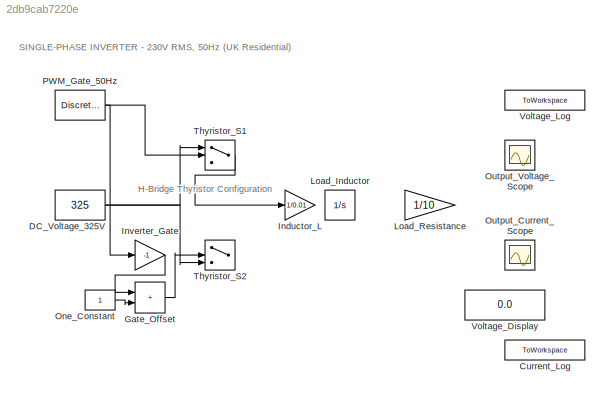
MODEL slx_2db9cab7220e
KIND model
CONFIG AbsTol = auto
CONFIG EnableMultiTasking = off
CONFIG FixedStep = auto
CONFIG MaxStep = 1e-5
CONFIG MinStep = auto
CONFIG RelTol = 1e-3
CONFIG SampleTimeConstraint = Unconstrained
CONFIG SolverName = ode23t
CONFIG StartTime = 0.0
CONFIG StopTime = 0.1
BLOCK [ToWorkspace] Current_Log
  FixptAsFi = on
  MaxDataPoints = inf
  SampleTime = -1
  SaveFormat = Timeseries
  VariableName = single_phase_current
BLOCK [Constant] DC_Voltage_325V
  Value = 325
BLOCK [Sum] Gate_Offset
  IconShape = rectangular
BLOCK [Gain] Inductor_L
  Gain = 1/0.01
BLOCK [Gain] Inverter_Gate
  Gain = -1
BLOCK [Integrator] Load_Inductor
BLOCK [Gain] Load_Resistance
  Gain = 1/10
BLOCK [Constant] One_Constant
BLOCK [Scope] Output_Current_Scope
  Floating = off
  GraphicalSettings = {"GraphicalSettings":{"LegacySettings":true,"Style":{"Style":{"PlotType":"Auto"}}}}
  NumInputPorts = 1
  WasSavedAsWebScope = on
BLOCK [Scope] Output_Voltage_Scope
  Floating = off
  GraphicalSettings = {"GraphicalSettings":{"LegacySettings":true,"Style":{"Style":{"PlotType":"Auto"}}}}
  NumInputPorts = 1
  WasSavedAsWebScope = on
BLOCK [DiscretePulseGenerator] PWM_Gate_50Hz
  Period = 0.02
  PulseType = Time based
  PulseWidth = 50
BLOCK [Switch] Thyristor_S1
  Criteria = u2 > Threshold
  InputSameDT = off
  SaturateOnIntegerOverflow = off
  Threshold = 0.5
BLOCK [Switch] Thyristor_S2
  Criteria = u2 > Threshold
  InputSameDT = off
  SaturateOnIntegerOverflow = off
  Threshold = 0.5
BLOCK [Display] Voltage_Display
  Decimation = 1
BLOCK [ToWorkspace] Voltage_Log
  FixptAsFi = on
  MaxDataPoints = inf
  SampleTime = -1
  SaveFormat = Timeseries
  VariableName = single_phase_voltage
ANNOTATION (root): H-Bridge Thyristor Configuration
ANNOTATION (root): SINGLE-PHASE INVERTER - 230V RMS, 50Hz (UK Residential)
NET DC_Voltage_325V:1 -> Thyristor_S1:1, Thyristor_S2:3
LINE Gate_Offset:1 -> Thyristor_S2:2
LINE Inverter_Gate:1 -> Gate_Offset:1
LINE One_Constant:1 -> Gate_Offset:2
NET PWM_Gate_50Hz:1 -> Inverter_Gate:1, Thyristor_S1:2
LINE Thyristor_S1:1 -> Inductor_L:1
note: NET lines group one-source signal fan-out (src -> all destinations, sorted); 1:1 wires keep LINE
